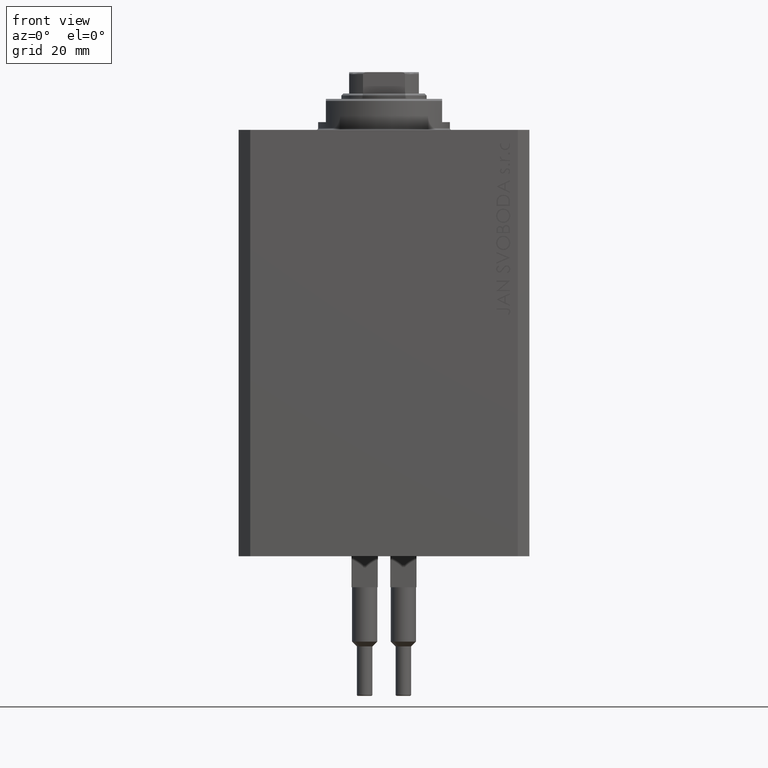
[diagram: clean part render]
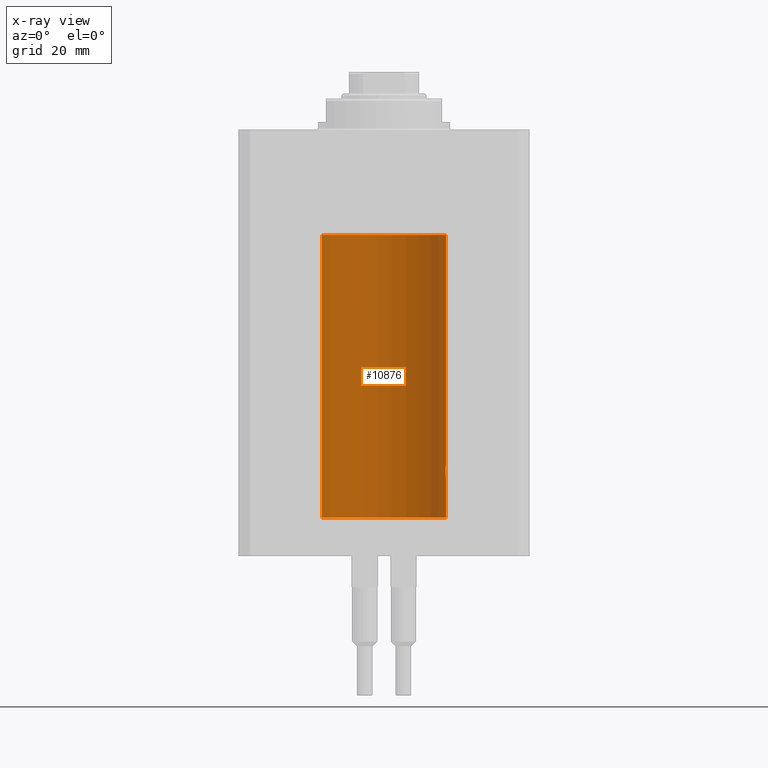
[diagram: x-ray — body ghosted, one internal face saturated and labeled with its STEP entity id]
A machine part, front view, then the same camera in x-ray: the body is ghosted and one INTERNAL B-rep face — a face not visible from any outside direction — is saturated and labeled: STEP entity #10876.
In plain terms, the highlighted cylindrical surface (partial cylindrical patch) has radius 16 mm, axis along (0, 0, 1).
Its self-contained STEP definition (entity closure, byte-faithful):
#488 = B_SPLINE_CURVE_WITH_KNOTS ( 'NONE', 3,
 ( #45896, #13076, #27892, #42733, #25434, #36114, #47315, #47566, #32241, #22027, #48040, #17654, #10141, #40758 ),
 .UNSPECIFIED., .F., .F.,
 ( 4, 2, 2, 2, 2, 2, 4 ),
 ( 3.424160547694500162E-18, 0.0003912813346923356916, 0.0007825626693846680221, 0.001173844004077000082, 0.001565125338769331924, 0.002347688008154024883, 0.003130250677538718058 ),
 .UNSPECIFIED. ) ;
#649 = EDGE_CURVE ( 'NONE', #40538, #12798, #20921, .T. ) ;
#819 = CARTESIAN_POINT ( 'NONE',  ( 15.99834953062734222, 0.2631943783489354982, -86.01308452963878892 ) ) ;
#1066 = CARTESIAN_POINT ( 'NONE',  ( 15.98747899434752817, 0.6443623600228916004, -86.10211550510818768 ) ) ;
#1325 = ORIENTED_EDGE ( 'NONE', *, *, #12588, .T. ) ;
#1723 = VECTOR ( 'NONE', #43678, 1000.000000000000000 ) ;
#2149 = CARTESIAN_POINT ( 'NONE',  ( 16.00000000000000000, 0.000000000000000000, -27.10000000000000142 ) ) ;
#3253 = CARTESIAN_POINT ( 'NONE',  ( -16.00000000000000000, 1.959434878635765131E-15, -100.0999999999999943 ) ) ;
#3651 = CARTESIAN_POINT ( 'NONE',  ( 16.00000000000000000, 0.000000000000000000, -100.0999999999999943 ) ) ;
#4713 = CARTESIAN_POINT ( 'NONE',  ( 15.94566414814287469, 1.320819617421907788, -86.49240758272487994 ) ) ;
#4917 = DIRECTION ( 'NONE',  ( -0.000000000000000000, -0.000000000000000000, 1.000000000000000000 ) ) ;
#5813 = DIRECTION ( 'NONE',  ( 0.000000000000000000, 0.000000000000000000, 1.000000000000000000 ) ) ;
#6125 = DIRECTION ( 'NONE',  ( -0.000000000000000000, -0.000000000000000000, 1.000000000000000000 ) ) ;
#7618 = CARTESIAN_POINT ( 'NONE',  ( 15.96887171920781689, 1.003448269354837441, -86.26505182542071282 ) ) ;
#8222 = CARTESIAN_POINT ( 'NONE',  ( 0.000000000000000000, 0.000000000000000000, -100.0999999999999943 ) ) ;
#10141 = CARTESIAN_POINT ( 'NONE',  ( 15.87450786638751410, 2.000000000000297096, -88.26124530359815878 ) ) ;
#10613 = LINE ( 'NONE', #32964, #1723 ) ;
#10876 = ADVANCED_FACE ( 'NONE', ( #29205 ), #44034, .F. ) ;
#11942 = DIRECTION ( 'NONE',  ( 1.000000000000000000, 0.000000000000000000, 0.000000000000000000 ) ) ;
#12497 = AXIS2_PLACEMENT_3D ( 'NONE', #38182, #4917, #11942 ) ;
#12588 = EDGE_CURVE ( 'NONE', #12798, #23384, #488, .T. ) ;
#12698 = EDGE_CURVE ( 'NONE', #25146, #20326, #10613, .T. ) ;
#12798 = VERTEX_POINT ( 'NONE', #22755 ) ;
#13076 = CARTESIAN_POINT ( 'NONE',  ( 15.99999999999999645, 0.1323149458028788361, -90.00000000000002842 ) ) ;
#13091 = CARTESIAN_POINT ( 'NONE',  ( -16.00000000000000000, 1.959434878635765131E-15, -27.10000000000000142 ) ) ;
#14309 = ORIENTED_EDGE ( 'NONE', *, *, #18507, .F. ) ;
#14565 = EDGE_LOOP ( 'NONE', ( #30840, #14309, #41064, #1325, #22455, #18233, #32518 ) ) ;
#15139 = CARTESIAN_POINT ( 'NONE',  ( 16.00000000000000000, -2.738688404655786685E-23, -86.00000000000000000 ) ) ;
#15619 = CARTESIAN_POINT ( 'NONE',  ( 15.87450786638750699, 2.000000000000297096, -88.00000000000000000 ) ) ;
#15859 = CARTESIAN_POINT ( 'NONE',  ( 15.99207203775707065, 0.5197027266689088210, -86.06427960618061945 ) ) ;
#16365 = AXIS2_PLACEMENT_3D ( 'NONE', #42740, #5813, #20838 ) ;
#17654 = CARTESIAN_POINT ( 'NONE',  ( 15.88135773388169092, 1.947448446433282854, -88.52472455433247944 ) ) ;
#18233 = ORIENTED_EDGE ( 'NONE', *, *, #12698, .T. ) ;
#18507 = EDGE_CURVE ( 'NONE', #40538, #19863, #32775, .T. ) ;
#19028 = CARTESIAN_POINT ( 'NONE',  ( 15.95379436193629985, 1.219925354616377966, -86.40980009844315646 ) ) ;
#19765 = CARTESIAN_POINT ( 'NONE',  ( 16.00000000000000000, -2.738688404655786685E-23, -86.00000000000000000 ) ) ;
#19863 = VERTEX_POINT ( 'NONE', #3253 ) ;
#20326 = VERTEX_POINT ( 'NONE', #2149 ) ;
#20838 = DIRECTION ( 'NONE',  ( 1.000000000000000000, 0.000000000000000000, 0.000000000000000000 ) ) ;
#20921 = LINE ( 'NONE', #43069, #30914 ) ;
#22027 = CARTESIAN_POINT ( 'NONE',  ( 15.92096875784782739, 1.599058044721133331, -89.22922593843965444 ) ) ;
#22422 = CARTESIAN_POINT ( 'NONE',  ( 15.88249567060696243, 1.935716055827872539, -87.48027816021618719 ) ) ;
#22455 = ORIENTED_EDGE ( 'NONE', *, *, #38659, .T. ) ;
#22755 = CARTESIAN_POINT ( 'NONE',  ( 16.00000000000000000, 3.524002214059393877E-15, -90.00000000000000000 ) ) ;
#23150 = CARTESIAN_POINT ( 'NONE',  ( 15.87450786638751055, 2.000000000000297984, -87.86943869497294202 ) ) ;
#23384 = VERTEX_POINT ( 'NONE', #35454 ) ;
#25146 = VERTEX_POINT ( 'NONE', #19765 ) ;
#25434 = CARTESIAN_POINT ( 'NONE',  ( 15.98743782203464825, 0.6453927552190293904, -89.89754035852679692 ) ) ;
#26433 = VECTOR ( 'NONE', #45676, 1000.000000000000000 ) ;
#27381 = AXIS2_PLACEMENT_3D ( 'NONE', #8222, #41280, #34444 ) ;
#27892 = CARTESIAN_POINT ( 'NONE',  ( 15.99836014839681830, 0.2623923436743452187, -89.98699919334814012 ) ) ;
#29205 = FACE_OUTER_BOUND ( 'NONE', #14565, .T. ) ;
#30840 = ORIENTED_EDGE ( 'NONE', *, *, #36996, .F. ) ;
#30914 = VECTOR ( 'NONE', #6125, 1000.000000000000000 ) ;
#31111 = CIRCLE ( 'NONE', #16365, 16.00000000000000000 ) ;
#32241 = CARTESIAN_POINT ( 'NONE',  ( 15.94550883254178331, 1.322613426523511881, -89.50588495029012392 ) ) ;
#32518 = ORIENTED_EDGE ( 'NONE', *, *, #34041, .T. ) ;
#32775 = CIRCLE ( 'NONE', #27381, 16.00000000000000000 ) ;
#32964 = CARTESIAN_POINT ( 'NONE',  ( 16.00000000000000000, 0.000000000000000000, -100.0999999999999943 ) ) ;
#34041 = EDGE_CURVE ( 'NONE', #20326, #39867, #31111, .T. ) ;
#34083 = CARTESIAN_POINT ( 'NONE',  ( 16.00000000000000000, 0.1305637488590863926, -85.99999999999998579 ) ) ;
#34325 = CARTESIAN_POINT ( 'NONE',  ( 15.97588373855009536, 0.8864683965309503311, -86.20240655627672766 ) ) ;
#34444 = DIRECTION ( 'NONE',  ( 1.000000000000000000, 0.000000000000000000, 0.000000000000000000 ) ) ;
#35454 = CARTESIAN_POINT ( 'NONE',  ( 15.87450786638750699, 2.000000000000297096, -88.00000000000000000 ) ) ;
#36114 = CARTESIAN_POINT ( 'NONE',  ( 15.97582125337101999, 0.8876008124445644576, -89.79704090617748591 ) ) ;
#36996 = EDGE_CURVE ( 'NONE', #19863, #39867, #44955, .T. ) ;
#37248 = CARTESIAN_POINT ( 'NONE',  ( 15.92095407913750726, 1.590131347295332009, -86.77998469042918828 ) ) ;
#37979 = CARTESIAN_POINT ( 'NONE',  ( 15.90582997788426312, 1.734897462761020082, -86.99646332855050446 ) ) ;
#38182 = CARTESIAN_POINT ( 'NONE',  ( 0.000000000000000000, 0.000000000000000000, -100.0999999999999943 ) ) ;
#38659 = EDGE_CURVE ( 'NONE', #23384, #25146, #41766, .T. ) ;
#39867 = VERTEX_POINT ( 'NONE', #13091 ) ;
#40538 = VERTEX_POINT ( 'NONE', #3651 ) ;
#40758 = CARTESIAN_POINT ( 'NONE',  ( 15.87450786638750699, 2.000000000000297096, -88.00000000000000000 ) ) ;
#40912 = CARTESIAN_POINT ( 'NONE',  ( 15.89878974374255449, 1.797508500259969777, -87.11334888788564967 ) ) ;
#41064 = ORIENTED_EDGE ( 'NONE', *, *, #649, .T. ) ;
#41280 = DIRECTION ( 'NONE',  ( 0.000000000000000000, 0.000000000000000000, 1.000000000000000000 ) ) ;
#41411 = CARTESIAN_POINT ( 'NONE',  ( 15.92911104305801828, 1.507378839264603476, -86.67893664295412748 ) ) ;
#41766 = B_SPLINE_CURVE_WITH_KNOTS ( 'NONE', 3,
 ( #15619, #23150, #44788, #22422, #44557, #40912, #37979, #37248, #41411, #4713, #19028, #7618, #34325, #1066, #15859, #819, #34083, #15139 ),
 .UNSPECIFIED., .F., .F.,
 ( 4, 2, 2, 2, 2, 2, 2, 2, 4 ),
 ( 0.003130250677538718058, 0.003521348247420690372, 0.003912445817302662686, 0.004303543387184635000, 0.004694640957066607313, 0.005085738526948579627, 0.005476836096830552808, 0.005867933666712525122, 0.006259031236594497435 ),
 .UNSPECIFIED. ) ;
#41796 = CARTESIAN_POINT ( 'NONE',  ( -16.00000000000000000, 1.959434878635765131E-15, -100.0999999999999943 ) ) ;
#42733 = CARTESIAN_POINT ( 'NONE',  ( 15.99211620657850474, 0.5182628822511399225, -89.93608344894170159 ) ) ;
#42740 = CARTESIAN_POINT ( 'NONE',  ( 0.000000000000000000, 0.000000000000000000, -27.10000000000000142 ) ) ;
#43069 = CARTESIAN_POINT ( 'NONE',  ( 16.00000000000000000, 0.000000000000000000, -100.0999999999999943 ) ) ;
#43678 = DIRECTION ( 'NONE',  ( -0.000000000000000000, -0.000000000000000000, 1.000000000000000000 ) ) ;
#44034 = CYLINDRICAL_SURFACE ( 'NONE', #12497, 16.00000000000000000 ) ;
#44557 = CARTESIAN_POINT ( 'NONE',  ( 15.88712192135845491, 1.897869642555071179, -87.35557946728211220 ) ) ;
#44788 = CARTESIAN_POINT ( 'NONE',  ( 15.87617168140110380, 1.986916736633999037, -87.73680934434936773 ) ) ;
#44955 = LINE ( 'NONE', #41796, #26433 ) ;
#45676 = DIRECTION ( 'NONE',  ( -0.000000000000000000, -0.000000000000000000, 1.000000000000000000 ) ) ;
#45896 = CARTESIAN_POINT ( 'NONE',  ( 16.00000000000000000, 3.524002214059393877E-15, -90.00000000000000000 ) ) ;
#47315 = CARTESIAN_POINT ( 'NONE',  ( 15.96893716441426214, 1.002454028984434808, -89.73556042441214231 ) ) ;
#47566 = CARTESIAN_POINT ( 'NONE',  ( 15.95380611548778660, 1.219810915946573759, -89.59032870701324214 ) ) ;
#48040 = CARTESIAN_POINT ( 'NONE',  ( 15.90454527605181667, 1.748004143318092174, -89.00616739381551668 ) ) ;